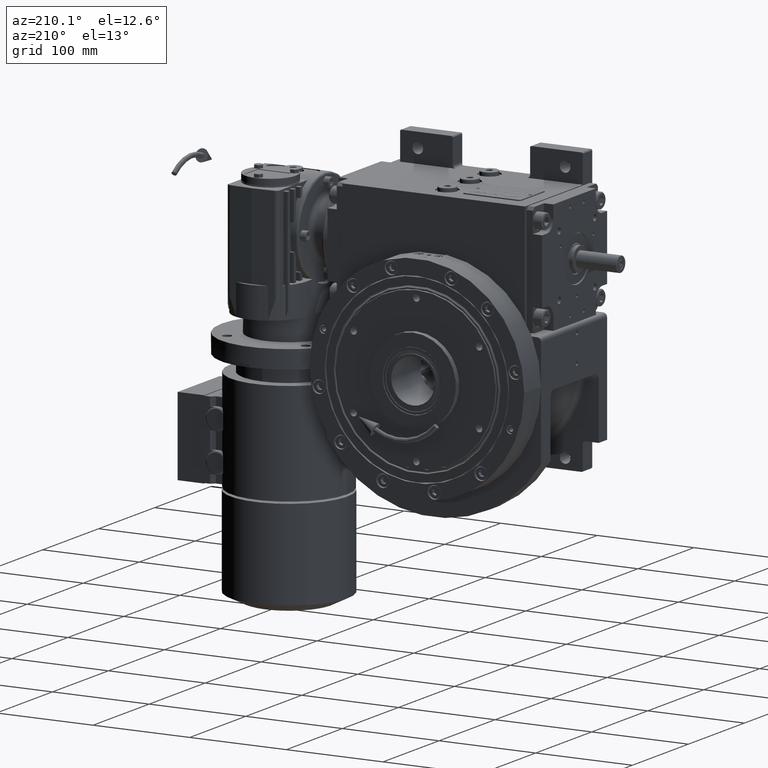
[diagram: clean part render]
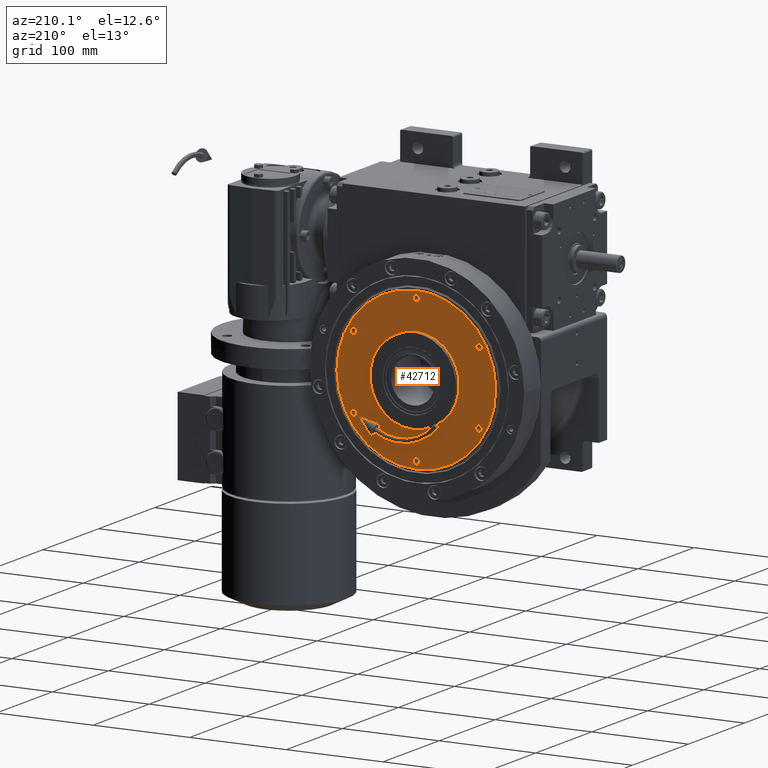
[diagram: same view with one face highlighted and labeled with its STEP entity id]
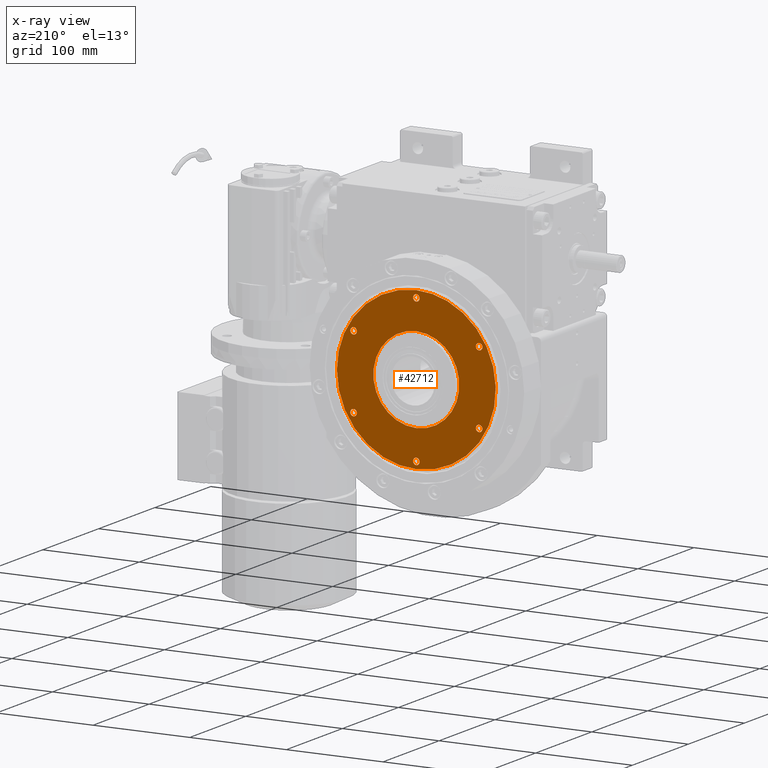
[diagram: x-ray of the same camera — body ghosted, the highlighted face saturated]
A machine part, auxiliary view. The second image highlights one B-rep face of the part: STEP entity #42712.
The next image is the same camera in x-ray: the body ghosted, the highlighted face saturated — about 0% of this face is hidden behind the body in this view.
In plain terms, the highlighted planar face has unit normal (0, -1, -0).
Its self-contained STEP definition (entity closure, byte-faithful):
#217 = EDGE_LOOP ( 'NONE', ( #3648, #22772 ) ) ;
#1012 = CARTESIAN_POINT ( 'NONE',  ( 73.74813151264139321, 110.5000000000000000, -36.37479690083411299 ) ) ;
#1522 = CARTESIAN_POINT ( 'NONE',  ( 69.83423930135026581, 110.4999999999999858, -43.41667302301342346 ) ) ;
#1560 = ORIENTED_EDGE ( 'NONE', *, *, #62625, .F. ) ;
#2117 = DIRECTION ( 'NONE',  ( 0.000000000000000000, 1.000000000000000000, 1.540743955586159449E-33 ) ) ;
#2300 = VERTEX_POINT ( 'NONE', #42890 ) ;
#2467 = ORIENTED_EDGE ( 'NONE', *, *, #32958, .F. ) ;
#2635 = CARTESIAN_POINT ( 'NONE',  ( -40.90000000000027569, 110.5000000000000000, 64.95190528383290030 ) ) ;
#3648 = ORIENTED_EDGE ( 'NONE', *, *, #23586, .F. ) ;
#3738 = EDGE_CURVE ( 'NONE', #2300, #33076, #42170, .T. ) ;
#3795 = AXIS2_PLACEMENT_3D ( 'NONE', #78280, #55927, #23265 ) ;
#3812 = CARTESIAN_POINT ( 'NONE',  ( -79.42723460417914794, 110.5000000000000142, 21.28768615169941825 ) ) ;
#3947 = CARTESIAN_POINT ( 'NONE',  ( -40.89999999999999858, 110.5000000000000000, -64.95190528383290030 ) ) ;
#4323 = CARTESIAN_POINT ( 'NONE',  ( 80.11850087870728032, 110.4999999999999574, 18.33894396968164386 ) ) ;
#4347 = B_SPLINE_CURVE_WITH_KNOTS ( 'NONE', 3,
 ( #90462, #43717, #81628, #66581, #50473, #68114, #92005, #19342, #50994, #3812, #98291, #74354, #42173, #49971, #66065, #34903, #20371, #11071, #82664, #99316, #11579, #4836, #12101, #99822, #34385, #51509, #35423, #26611, #58785, #43211, #10558, #75383, #18828, #73835, #75896, #28667, #67084, #58273, #27134, #98805, #19852, #4323, #59306, #52012, #74877, #91511, #90990, #83185 ),
 .UNSPECIFIED., .F., .F.,
 ( 4, 1, 1, 1, 2, 2, 2, 2, 2, 2, 2, 2, 2, 2, 2, 2, 2, 2, 2, 2, 2, 1, 1, 1, 2, 2, 4 ),
 ( 0.000000000000000000, 0.03124999999999995837, 0.04687499999999995143, 0.05468749999999994449, 0.05859374999999993755, 0.06249999999999991673, 0.09374999999999993061, 0.1249999999999999445, 0.1874999999999999722, 0.2500000000000000000, 0.3125000000000000000, 0.3750000000000000555, 0.4375000000000000555, 0.5000000000000001110, 0.5625000000000001110, 0.6250000000000001110, 0.6875000000000002220, 0.7500000000000002220, 0.8125000000000001110, 0.8437500000000001110, 0.8750000000000000000, 0.9062500000000000000, 0.9218750000000000000, 0.9296875000000000000, 0.9335937500000000000, 0.9375000000000000000, 1.000000000000000000 ),
 .UNSPECIFIED. ) ;
#4554 = ORIENTED_EDGE ( 'NONE', *, *, #15398, .T. ) ;
#4836 = CARTESIAN_POINT ( 'NONE',  ( -21.32594694526337165, 110.5000000000000000, 79.55394827524149548 ) ) ;
#5035 = AXIS2_PLACEMENT_3D ( 'NONE', #62536, #30353, #62034 ) ;
#5432 = DIRECTION ( 'NONE',  ( 1.000000000000000000, 0.000000000000000000, 0.000000000000000000 ) ) ;
#6714 = CARTESIAN_POINT ( 'NONE',  ( -1.048367022895735268E-10, 110.5000000000000142, -82.18603692326404087 ) ) ;
#7284 = VERTEX_POINT ( 'NONE', #59743 ) ;
#8233 = CARTESIAN_POINT ( 'NONE',  ( -80.67302273752034125, 110.5000000000000284, -15.69862675829507204 ) ) ;
#8808 = EDGE_LOOP ( 'NONE', ( #2467, #54279 ) ) ;
#9291 = VERTEX_POINT ( 'NONE', #27861 ) ;
#9298 = CARTESIAN_POINT ( 'NONE',  ( 74.89780891093313642, 110.5000000000000284, -33.94318345663835856 ) ) ;
#9643 = ORIENTED_EDGE ( 'NONE', *, *, #26002, .T. ) ;
#9868 = EDGE_LOOP ( 'NONE', ( #32196, #34563 ) ) ;
#10558 = CARTESIAN_POINT ( 'NONE',  ( 50.14712887847355915, 110.4999999999999716, 65.33694734459872677 ) ) ;
#11064 = EDGE_CURVE ( 'NONE', #70471, #87347, #65552, .T. ) ;
#11071 = CARTESIAN_POINT ( 'NONE',  ( -50.14684274527402152, 110.5000000000000142, 65.33704237330343290 ) ) ;
#11133 = CARTESIAN_POINT ( 'NONE',  ( 34.10000000000000142, 110.5000000000000000, -64.95190528383290030 ) ) ;
#11143 = EDGE_LOOP ( 'NONE', ( #67783, #9643, #22287 ) ) ;
#11283 = FACE_BOUND ( 'NONE', #14084, .T. ) ;
#11340 = CARTESIAN_POINT ( 'NONE',  ( -78.39999999999999147, 110.5000000000000000, 2.697109197274935919E-15 ) ) ;
#11579 = CARTESIAN_POINT ( 'NONE',  ( -26.46591210633614466, 110.5000000000000426, 77.99484015378844504 ) ) ;
#12101 = CARTESIAN_POINT ( 'NONE',  ( -10.74154236511540184, 110.5000000000000000, 81.65956691445188653 ) ) ;
#12320 = DIRECTION ( 'NONE',  ( 0.000000000000000000, 1.000000000000000000, -2.089831575765000222E-15 ) ) ;
#12438 = VERTEX_POINT ( 'NONE', #25558 ) ;
#12898 = VERTEX_POINT ( 'NONE', #2635 ) ;
#14004 = CARTESIAN_POINT ( 'NONE',  ( 78.32115647600109298, 110.4999999999999716, -25.16263082416817198 ) ) ;
#14084 = EDGE_LOOP ( 'NONE', ( #99398, #46959 ) ) ;
#14291 = CARTESIAN_POINT ( 'NONE',  ( 1.776356839400252042E-14, 110.5000000000000000, -3.552713678800499352E-15 ) ) ;
#14401 = DIRECTION ( 'NONE',  ( 0.000000000000000000, 1.000000000000000000, 1.540743955586159449E-33 ) ) ;
#15398 = EDGE_CURVE ( 'NONE', #32811, #40595, #47558, .T. ) ;
#15477 = CARTESIAN_POINT ( 'NONE',  ( -79.42706700825716837, 110.5000000000000000, -21.28825086087052298 ) ) ;
#15667 = AXIS2_PLACEMENT_3D ( 'NONE', #14291, #37133, #68784 ) ;
#16380 = AXIS2_PLACEMENT_3D ( 'NONE', #42924, #12320, #43932 ) ;
#16506 = CARTESIAN_POINT ( 'NONE',  ( -61.93037135062296272, 110.5000000000000142, -54.29808050887305626 ) ) ;
#16828 = CIRCLE ( 'NONE', #59970, 3.400000000000000355 ) ;
#16918 = AXIS2_PLACEMENT_3D ( 'NONE', #63683, #57806, #58334 ) ;
#17063 = CARTESIAN_POINT ( 'NONE',  ( 26.46527515611211356, 110.5000000000000284, -77.99510436064866781 ) ) ;
#18291 = CARTESIAN_POINT ( 'NONE',  ( -34.10000000000027853, 110.5000000000000000, 64.95190528383345452 ) ) ;
#18828 = CARTESIAN_POINT ( 'NONE',  ( 61.93011393209871329, 110.4999999999999858, 54.29833759267260263 ) ) ;
#18888 = ORIENTED_EDGE ( 'NONE', *, *, #100378, .F. ) ;
#19039 = FACE_BOUND ( 'NONE', #21059, .T. ) ;
#19342 = CARTESIAN_POINT ( 'NONE',  ( -80.67297687466572143, 110.5000000000000284, 15.69867770626846770 ) ) ;
#19438 = CARTESIAN_POINT ( 'NONE',  ( 37.49999999999972289, 110.5000000000000000, 64.95190528383290030 ) ) ;
#19642 = CARTESIAN_POINT ( 'NONE',  ( -37.50000000000000000, 110.5000000000000000, -64.95190528383234607 ) ) ;
#19852 = CARTESIAN_POINT ( 'NONE',  ( 79.57457908632085264, 110.4999999999999858, 20.63093614355465988 ) ) ;
#20371 = CARTESIAN_POINT ( 'NONE',  ( -54.29909472632881773, 110.5000000000000000, 61.92944677904171868 ) ) ;
#21059 = EDGE_LOOP ( 'NONE', ( #22441, #4554 ) ) ;
#22287 = ORIENTED_EDGE ( 'NONE', *, *, #23649, .T. ) ;
#22441 = ORIENTED_EDGE ( 'NONE', *, *, #69144, .F. ) ;
#22756 = CARTESIAN_POINT ( 'NONE',  ( -80.73621674438206242, 110.5000000000000000, -15.37038518178290758 ) ) ;
#22772 = ORIENTED_EDGE ( 'NONE', *, *, #3738, .F. ) ;
#23111 = CIRCLE ( 'NONE', #47989, 3.400000000000000355 ) ;
#23265 = DIRECTION ( 'NONE',  ( -1.000000000000000000, 0.000000000000000000, 0.000000000000000000 ) ) ;
#23586 = EDGE_CURVE ( 'NONE', #33076, #2300, #90001, .T. ) ;
#23649 = EDGE_CURVE ( 'NONE', #79382, #78569, #64438, .T. ) ;
#23770 = CARTESIAN_POINT ( 'NONE',  ( -71.33364469616624604, 110.5000000000000142, -41.17277949763079903 ) ) ;
#24284 = CARTESIAN_POINT ( 'NONE',  ( -80.85914935550086113, 110.5000000000000142, -14.71020086056657838 ) ) ;
#25350 = CARTESIAN_POINT ( 'NONE',  ( 65.33763228115991240, 110.4999999999999858, -50.14630245138530995 ) ) ;
#25558 = CARTESIAN_POINT ( 'NONE',  ( 71.59999999999999432, 110.5000000000000000, -3.645078006012920499E-16 ) ) ;
#26002 = EDGE_CURVE ( 'NONE', #54100, #79382, #29404, .T. ) ;
#26235 = EDGE_LOOP ( 'NONE', ( #1560, #73242 ) ) ;
#26611 = CARTESIAN_POINT ( 'NONE',  ( 26.46597584794664115, 110.5000000000000000, 77.99473097346013617 ) ) ;
#27134 = CARTESIAN_POINT ( 'NONE',  ( 76.96221393906922970, 110.4999999999999716, 28.95965176232081362 ) ) ;
#27766 = CIRCLE ( 'NONE', #57604, 3.400000000000000355 ) ;
#27861 = CARTESIAN_POINT ( 'NONE',  ( -34.10000000000000142, 110.5000000000000000, -64.95190528383234607 ) ) ;
#28009 = DIRECTION ( 'NONE',  ( -1.000000000000000000, 0.000000000000000000, -1.502066445081090976E-15 ) ) ;
#28667 = CARTESIAN_POINT ( 'NONE',  ( 71.21633143618713291, 110.5000000000000000, 41.11144999242241482 ) ) ;
#28869 = PLANE ( 'NONE',  #82416 ) ;
#29404 = B_SPLINE_CURVE_WITH_KNOTS ( 'NONE', 3,
 ( #77820, #93423, #100723, #78825, #78325, #47140, #94964, #53426, #14004, #88158, #9298, #1012, #39903, #1522, #25350, #72589, #64298, #49217, #89718, #32107, #17063, #81398, #33644, #40931, #55968 ),
 .UNSPECIFIED., .F., .F.,
 ( 4, 2, 2, 1, 1, 1, 2, 2, 2, 2, 2, 2, 2, 4 ),
 ( 0.000000000000000000, 0.06249999648971088506, 0.06640624627031782579, 0.07031249605092476651, 0.07812499561213863408, 0.09374999473456628596, 0.1249999929794215758, 0.1562499912242768518, 0.1874999894691321833, 0.2499999859588427631, 0.3124999824485532596, 0.3749999789382638671, 0.4374999754279744746, 0.4999999719176850821 ),
 .UNSPECIFIED. ) ;
#30353 = DIRECTION ( 'NONE',  ( 0.000000000000000000, 1.000000000000000000, 1.540743955586159449E-33 ) ) ;
#30528 = CARTESIAN_POINT ( 'NONE',  ( -81.03742544091511490, 110.5000000000000284, -13.71909706410294660 ) ) ;
#30917 = EDGE_CURVE ( 'NONE', #87347, #70471, #78630, .T. ) ;
#31040 = CARTESIAN_POINT ( 'NONE',  ( -10.74076764840350862, 110.4999999999999858, -81.65964476131456706 ) ) ;
#31555 = CARTESIAN_POINT ( 'NONE',  ( -41.17304319471159602, 110.5000000000000426, -71.33342587732616380 ) ) ;
#32107 = CARTESIAN_POINT ( 'NONE',  ( 36.43741795798403871, 110.5000000000000142, -73.86467248177763167 ) ) ;
#32196 = ORIENTED_EDGE ( 'NONE', *, *, #30917, .F. ) ;
#32811 = VERTEX_POINT ( 'NONE', #92821 ) ;
#32958 = EDGE_CURVE ( 'NONE', #58213, #9291, #60003, .T. ) ;
#33076 = VERTEX_POINT ( 'NONE', #11133 ) ;
#33556 = DIRECTION ( 'NONE',  ( 0.000000000000000000, 1.000000000000000000, 1.540743955586159449E-33 ) ) ;
#33644 = CARTESIAN_POINT ( 'NONE',  ( 10.74078281828397508, 110.4999999999999716, -81.65971843768956262 ) ) ;
#34385 = CARTESIAN_POINT ( 'NONE',  ( 5.396190313849494657, 110.5000000000000000, 82.18606838660620895 ) ) ;
#34479 = DIRECTION ( 'NONE',  ( 4.179663151529973622E-15, 1.000000000000000000, 2.089831575764989967E-15 ) ) ;
#34563 = ORIENTED_EDGE ( 'NONE', *, *, #11064, .F. ) ;
#34681 = DIRECTION ( 'NONE',  ( 1.000000000000000000, 0.000000000000000000, 0.000000000000000000 ) ) ;
#34903 = CARTESIAN_POINT ( 'NONE',  ( -61.92976105365575279, 110.5000000000000142, 54.29857669836266609 ) ) ;
#35423 = CARTESIAN_POINT ( 'NONE',  ( 21.32597268393185175, 110.4999999999999858, 79.55402177641883554 ) ) ;
#36161 = FACE_OUTER_BOUND ( 'NONE', #11143, .T. ) ;
#37133 = DIRECTION ( 'NONE',  ( 6.394085361170760874E-16, 1.000000000000000000, -2.395852276087253871E-17 ) ) ;
#39333 = VERTEX_POINT ( 'NONE', #39548 ) ;
#39548 = CARTESIAN_POINT ( 'NONE',  ( 78.39999999999999147, 110.5000000000000000, -7.967186993941117277E-27 ) ) ;
#39854 = CARTESIAN_POINT ( 'NONE',  ( -81.98533930688320481, 110.5000000000000000, -6.740832071539393233 ) ) ;
#39903 = CARTESIAN_POINT ( 'NONE',  ( 71.21656534630055546, 110.4999999999999858, -41.11101387479465075 ) ) ;
#40548 = DIRECTION ( 'NONE',  ( -1.000000000000000000, 0.000000000000000000, 0.000000000000000000 ) ) ;
#40595 = VERTEX_POINT ( 'NONE', #82615 ) ;
#40837 = CARTESIAN_POINT ( 'NONE',  ( 75.00000000000000000, 110.5000000000000000, -4.884981308350821306E-15 ) ) ;
#40931 = CARTESIAN_POINT ( 'NONE',  ( 5.396965314102869726, 110.4999999999999858, -82.18599046470633596 ) ) ;
#42170 = CIRCLE ( 'NONE', #76990, 3.400000000000000355 ) ;
#42173 = CARTESIAN_POINT ( 'NONE',  ( -73.86467355760834153, 110.5000000000000142, 36.43724814399683254 ) ) ;
#42422 = CIRCLE ( 'NONE', #48992, 3.400000000000000355 ) ;
#42712 = ADVANCED_FACE ( 'NONE', ( #36161, #90162, #67819, #44427, #11283, #68322, #100025, #19039 ), #28869, .F. ) ;
#42890 = CARTESIAN_POINT ( 'NONE',  ( 40.89999999999999858, 110.5000000000000000, -64.95190528383234607 ) ) ;
#42906 = CARTESIAN_POINT ( 'NONE',  ( 2.030702568688729503E-14, 110.5000000000000000, 0.000000000000000000 ) ) ;
#42924 = CARTESIAN_POINT ( 'NONE',  ( -37.50000000000027711, 110.5000000000000000, 64.95190528383345452 ) ) ;
#43211 = CARTESIAN_POINT ( 'NONE',  ( 41.17346744512528289, 110.4999999999999858, 71.33314274904846286 ) ) ;
#43717 = CARTESIAN_POINT ( 'NONE',  ( -82.18410185386885303, 110.4999999999999858, 2.706720040397336824 ) ) ;
#43932 = DIRECTION ( 'NONE',  ( 1.000000000000000000, 0.000000000000000000, 0.000000000000000000 ) ) ;
#43979 = EDGE_CURVE ( 'NONE', #49541, #12898, #71058, .T. ) ;
#44427 = FACE_BOUND ( 'NONE', #53297, .T. ) ;
#46959 = ORIENTED_EDGE ( 'NONE', *, *, #43979, .F. ) ;
#47102 = CARTESIAN_POINT ( 'NONE',  ( -81.41054315470101699, 110.5000000000000142, -11.40073033654709000 ) ) ;
#47140 = CARTESIAN_POINT ( 'NONE',  ( 80.33387830201940005, 110.4999999999999716, -17.35095847086826737 ) ) ;
#47558 = CIRCLE ( 'NONE', #59248, 44.45000000000000284 ) ;
#47623 = CARTESIAN_POINT ( 'NONE',  ( -76.96293238175633178, 110.5000000000000284, -28.95791760141081284 ) ) ;
#47989 = AXIS2_PLACEMENT_3D ( 'NONE', #61627, #14401, #61117 ) ;
#48070 = CIRCLE ( 'NONE', #5035, 3.400000000000000355 ) ;
#48775 = CIRCLE ( 'NONE', #15667, 44.45000000000000284 ) ;
#48992 = AXIS2_PLACEMENT_3D ( 'NONE', #51425, #50917, #83099 ) ;
#49217 = CARTESIAN_POINT ( 'NONE',  ( 50.14771722367689222, 110.4999999999999716, -65.33645767331709919 ) ) ;
#49541 = VERTEX_POINT ( 'NONE', #18291 ) ;
#49883 = AXIS2_PLACEMENT_3D ( 'NONE', #73683, #2117, #28009 ) ;
#49971 = CARTESIAN_POINT ( 'NONE',  ( -71.33312151958747904, 110.5000000000000142, 41.17344376063476830 ) ) ;
#50473 = CARTESIAN_POINT ( 'NONE',  ( -81.03738559922308582, 110.5000000000000284, 13.71894467123656725 ) ) ;
#50570 = CARTESIAN_POINT ( 'NONE',  ( 37.50000000000000000, 110.5000000000000000, -64.95190528383290030 ) ) ;
#50699 = DIRECTION ( 'NONE',  ( -1.000000000000000000, 1.836909530733564901E-16, 0.000000000000000000 ) ) ;
#50917 = DIRECTION ( 'NONE',  ( 4.179663151529963367E-15, 1.000000000000000000, 2.089831575764994700E-15 ) ) ;
#50994 = CARTESIAN_POINT ( 'NONE',  ( -80.08037051196102141, 110.5000000000000142, 18.67829002333699506 ) ) ;
#51296 = DIRECTION ( 'NONE',  ( 0.000000000000000000, 1.000000000000000000, -2.089831575764980500E-15 ) ) ;
#51425 = CARTESIAN_POINT ( 'NONE',  ( -37.50000000000027711, 110.5000000000000000, 64.95190528383345452 ) ) ;
#51509 = CARTESIAN_POINT ( 'NONE',  ( 10.74154536275718641, 110.5000000000000000, 81.65949047945815664 ) ) ;
#52012 = CARTESIAN_POINT ( 'NONE',  ( 80.47346500646517597, 110.4999999999999716, 16.69135747300155614 ) ) ;
#52097 = DIRECTION ( 'NONE',  ( 1.000000000000000000, -4.081702296416015997E-15, 0.000000000000000000 ) ) ;
#52437 = CARTESIAN_POINT ( 'NONE',  ( -82.18603400874100373, 110.5000015448012078, -1.581323299043349694E-07 ) ) ;
#53297 = EDGE_LOOP ( 'NONE', ( #99467, #18888 ) ) ;
#53426 = CARTESIAN_POINT ( 'NONE',  ( 79.57472203535758126, 110.4999999999999858, -20.63044246711258722 ) ) ;
#54100 = VERTEX_POINT ( 'NONE', #61222 ) ;
#54279 = ORIENTED_EDGE ( 'NONE', *, *, #90804, .F. ) ;
#55423 = AXIS2_PLACEMENT_3D ( 'NONE', #63401, #55591, #40548 ) ;
#55591 = DIRECTION ( 'NONE',  ( 0.000000000000000000, 1.000000000000000000, -2.089831575764989967E-15 ) ) ;
#55927 = DIRECTION ( 'NONE',  ( 0.000000000000000000, 1.000000000000000000, -2.089831575764995489E-15 ) ) ;
#55968 = CARTESIAN_POINT ( 'NONE',  ( -1.048367022895735268E-10, 110.5000000000000142, -82.18603692326404087 ) ) ;
#56547 = CIRCLE ( 'NONE', #49883, 3.400000000000000355 ) ;
#57604 = AXIS2_PLACEMENT_3D ( 'NONE', #40837, #33556, #65239 ) ;
#57806 = DIRECTION ( 'NONE',  ( 4.179663151529973622E-15, 1.000000000000000000, 2.089831575764979711E-15 ) ) ;
#58213 = VERTEX_POINT ( 'NONE', #3947 ) ;
#58273 = CARTESIAN_POINT ( 'NONE',  ( 74.89794069821219580, 110.5000000000000142, 33.94279222128608353 ) ) ;
#58334 = DIRECTION ( 'NONE',  ( -1.000000000000000000, 4.081702296416015997E-15, 0.000000000000000000 ) ) ;
#58785 = CARTESIAN_POINT ( 'NONE',  ( 36.43673274471090195, 110.5000000000000142, 73.86503631034787531 ) ) ;
#58899 = CARTESIAN_POINT ( 'NONE',  ( 34.09999999999972431, 110.5000000000000000, 64.95190528383290030 ) ) ;
#59248 = AXIS2_PLACEMENT_3D ( 'NONE', #63878, #64925, #95585 ) ;
#59306 = CARTESIAN_POINT ( 'NONE',  ( 80.33384769217845189, 110.4999999999999858, 17.35112966435321979 ) ) ;
#59409 = DIRECTION ( 'NONE',  ( 9.860761315262647568E-31, 1.000000000000000000, 2.089831575764994700E-15 ) ) ;
#59743 = CARTESIAN_POINT ( 'NONE',  ( -71.59999999999999432, 110.5000000000000000, 3.061616997868260769E-15 ) ) ;
#59970 = AXIS2_PLACEMENT_3D ( 'NONE', #19642, #51296, #34681 ) ;
#60003 = CIRCLE ( 'NONE', #16918, 3.400000000000000355 ) ;
#60530 = DIRECTION ( 'NONE',  ( -1.836909530733564901E-16, -1.000000000000000000, -4.632011979606505031E-33 ) ) ;
#61117 = DIRECTION ( 'NONE',  ( -1.000000000000000000, 0.000000000000000000, -3.069440126904848242E-15 ) ) ;
#61222 = CARTESIAN_POINT ( 'NONE',  ( 82.18603400874251008, 110.5000015448018047, 1.581323405575299952E-07 ) ) ;
#61627 = CARTESIAN_POINT ( 'NONE',  ( -75.00000000000000000, 110.5000000000000000, 1.043609643146843930E-14 ) ) ;
#61700 = CARTESIAN_POINT ( 'NONE',  ( -1.048367022895735268E-10, 110.5000000000000142, -82.18603692326404087 ) ) ;
#61703 = CARTESIAN_POINT ( 'NONE',  ( -21.32673791258707396, 110.5000000000000000, -79.55386997823406148 ) ) ;
#62034 = DIRECTION ( 'NONE',  ( 1.000000000000000000, 0.000000000000000000, -2.351060522735629490E-15 ) ) ;
#62536 = CARTESIAN_POINT ( 'NONE',  ( -75.00000000000000000, 110.5000000000000000, 7.993605777293068088E-15 ) ) ;
#62625 = EDGE_CURVE ( 'NONE', #12438, #39333, #56547, .T. ) ;
#62718 = CARTESIAN_POINT ( 'NONE',  ( -65.33708734634375048, 110.5000000000000142, -50.14696052069778887 ) ) ;
#63401 = CARTESIAN_POINT ( 'NONE',  ( 37.49999999999972289, 110.5000000000000000, 64.95190528383290030 ) ) ;
#63683 = CARTESIAN_POINT ( 'NONE',  ( -37.50000000000000000, 110.5000000000000000, -64.95190528383234607 ) ) ;
#63878 = CARTESIAN_POINT ( 'NONE',  ( 2.842170943040403268E-14, 110.5000000000000000, -7.105427357600998703E-15 ) ) ;
#64298 = CARTESIAN_POINT ( 'NONE',  ( 54.29822300750021924, 110.4999999999999432, -61.93031885547897986 ) ) ;
#64438 = B_SPLINE_CURVE_WITH_KNOTS ( 'NONE', 3,
 ( #6714, #102190, #31040, #61703, #86592, #85578, #31555, #78789, #87611, #16506, #62718, #23770, #95433, #47623, #94417, #15477, #79296, #8233, #22756, #24284, #30528, #47102, #39854, #71524, #93385 ),
 .UNSPECIFIED., .F., .F.,
 ( 4, 2, 2, 2, 2, 2, 2, 2, 2, 2, 1, 1, 1, 4 ),
 ( 0.4999999719176850821, 0.5624999754279744746, 0.6249999789382639781, 0.6874999824485534816, 0.7499999859588428741, 0.8124999894691323776, 0.8749999929794217701, 0.9062499947345665774, 0.9374999964897112736, 0.9414062467091042219, 0.9453124969284972812, 0.9531249973672833997, 0.9687499982448555258, 1.000000000000000000 ),
 .UNSPECIFIED. ) ;
#64800 = EDGE_CURVE ( 'NONE', #78569, #54100, #4347, .T. ) ;
#64925 = DIRECTION ( 'NONE',  ( -3.197042680585385368E-16, -1.000000000000000000, -2.395852276087259110E-17 ) ) ;
#65239 = DIRECTION ( 'NONE',  ( 1.000000000000000000, 0.000000000000000000, 1.436759208338440266E-15 ) ) ;
#65552 = CIRCLE ( 'NONE', #97096, 3.400000000000000355 ) ;
#66065 = CARTESIAN_POINT ( 'NONE',  ( -65.33761603904908100, 110.5000000000000426, 50.14632643991264871 ) ) ;
#66581 = CARTESIAN_POINT ( 'NONE',  ( -81.41049721478043466, 110.4999999999999858, 11.40046640563004487 ) ) ;
#67084 = CARTESIAN_POINT ( 'NONE',  ( 73.74790136345738745, 110.5000000000000000, 36.37523474268279244 ) ) ;
#67783 = ORIENTED_EDGE ( 'NONE', *, *, #64800, .T. ) ;
#67819 = FACE_BOUND ( 'NONE', #8808, .T. ) ;
#68078 = EDGE_CURVE ( 'NONE', #12898, #49541, #42422, .T. ) ;
#68114 = CARTESIAN_POINT ( 'NONE',  ( -80.85911346599473859, 110.4999999999999858, 14.71011054370710980 ) ) ;
#68322 = FACE_BOUND ( 'NONE', #9868, .T. ) ;
#68784 = DIRECTION ( 'NONE',  ( 1.000000000000000000, -6.244223985518314942E-16, 2.023907469293703493E-16 ) ) ;
#69144 = EDGE_CURVE ( 'NONE', #32811, #40595, #48775, .T. ) ;
#70471 = VERTEX_POINT ( 'NONE', #70839 ) ;
#70839 = CARTESIAN_POINT ( 'NONE',  ( 40.89999999999972147, 110.5000000000000000, 64.95190528383345452 ) ) ;
#71058 = CIRCLE ( 'NONE', #16380, 3.400000000000000355 ) ;
#71524 = CARTESIAN_POINT ( 'NONE',  ( -82.18412582237159825, 110.5000000000000426, -2.706922455996795041 ) ) ;
#72589 = CARTESIAN_POINT ( 'NONE',  ( 61.93063791654595462, 110.5000000000000000, -54.29769947772633287 ) ) ;
#73242 = ORIENTED_EDGE ( 'NONE', *, *, #84859, .F. ) ;
#73683 = CARTESIAN_POINT ( 'NONE',  ( 75.00000000000000000, 110.5000000000000000, 5.107025913275571780E-15 ) ) ;
#73835 = CARTESIAN_POINT ( 'NONE',  ( 65.33793898011035139, 110.4999999999999716, 50.14568632257584824 ) ) ;
#74354 = CARTESIAN_POINT ( 'NONE',  ( -76.96276536764067089, 110.5000000000000142, 28.95822631422415583 ) ) ;
#74877 = CARTESIAN_POINT ( 'NONE',  ( 80.54161329299185468, 110.4999999999999716, 16.35928189945978062 ) ) ;
#75383 = CARTESIAN_POINT ( 'NONE',  ( 54.29876972623154785, 110.4999999999999858, 61.92967476324737675 ) ) ;
#75896 = CARTESIAN_POINT ( 'NONE',  ( 69.83408181518969116, 110.4999999999999858, 43.41695845024568001 ) ) ;
#76990 = AXIS2_PLACEMENT_3D ( 'NONE', #50570, #34479, #52097 ) ;
#77737 = EDGE_CURVE ( 'NONE', #82020, #7284, #23111, .T. ) ;
#77820 = CARTESIAN_POINT ( 'NONE',  ( 82.18603400874251008, 110.5000015448018047, 1.581323405575299952E-07 ) ) ;
#78280 = CARTESIAN_POINT ( 'NONE',  ( 37.50000000000000000, 110.5000000000000000, -64.95190528383290030 ) ) ;
#78325 = CARTESIAN_POINT ( 'NONE',  ( 80.47346700800821395, 110.4999999999999858, -16.69126919466643955 ) ) ;
#78569 = VERTEX_POINT ( 'NONE', #52437 ) ;
#78630 = CIRCLE ( 'NONE', #55423, 3.400000000000000355 ) ;
#78789 = CARTESIAN_POINT ( 'NONE',  ( -50.14754556814370545, 110.5000000000000000, -65.33666926840521683 ) ) ;
#78825 = CARTESIAN_POINT ( 'NONE',  ( 80.54158547785669953, 110.4999999999999858, -16.35931090249731312 ) ) ;
#79296 = CARTESIAN_POINT ( 'NONE',  ( -80.08026981023135704, 110.5000000000000142, -18.67866566709026444 ) ) ;
#79382 = VERTEX_POINT ( 'NONE', #61700 ) ;
#81398 = CARTESIAN_POINT ( 'NONE',  ( 21.32671897775462355, 110.5000000000000142, -79.55379426815670740 ) ) ;
#81628 = CARTESIAN_POINT ( 'NONE',  ( -81.98529366466023305, 110.4999999999999716, 6.740478288382624861 ) ) ;
#82020 = VERTEX_POINT ( 'NONE', #11340 ) ;
#82416 = AXIS2_PLACEMENT_3D ( 'NONE', #42906, #60530, #50699 ) ;
#82615 = CARTESIAN_POINT ( 'NONE',  ( -44.45000000000027995, 110.5000000000000000, -7.258073362939554685E-15 ) ) ;
#82664 = CARTESIAN_POINT ( 'NONE',  ( -41.17372798125234112, 110.5000000000000142, 71.33306199257258129 ) ) ;
#83099 = DIRECTION ( 'NONE',  ( -1.000000000000000000, 4.081702296416015997E-15, 0.000000000000000000 ) ) ;
#83185 = CARTESIAN_POINT ( 'NONE',  ( 82.18603400874251008, 110.5000015448018047, 1.581323405575299952E-07 ) ) ;
#84859 = EDGE_CURVE ( 'NONE', #39333, #12438, #27766, .T. ) ;
#85578 = CARTESIAN_POINT ( 'NONE',  ( -36.43753282681043260, 110.4999999999999858, -73.86470531561997177 ) ) ;
#86592 = CARTESIAN_POINT ( 'NONE',  ( -26.46516568415016835, 110.5000000000000284, -77.99506614383170700 ) ) ;
#87347 = VERTEX_POINT ( 'NONE', #58899 ) ;
#87611 = CARTESIAN_POINT ( 'NONE',  ( -54.29850716401767841, 110.5000000000000000, -61.92993699073153380 ) ) ;
#88158 = CARTESIAN_POINT ( 'NONE',  ( 76.96232867576274828, 110.5000000000000142, -28.95928036596271227 ) ) ;
#89718 = CARTESIAN_POINT ( 'NONE',  ( 41.17286106389226319, 110.4999999999999858, -71.33364164011456410 ) ) ;
#90001 = CIRCLE ( 'NONE', #3795, 3.400000000000000355 ) ;
#90162 = FACE_BOUND ( 'NONE', #217, .T. ) ;
#90462 = CARTESIAN_POINT ( 'NONE',  ( -82.18603400874100373, 110.5000015448012078, -1.581323299043349694E-07 ) ) ;
#90804 = EDGE_CURVE ( 'NONE', #9291, #58213, #16828, .T. ) ;
#90990 = CARTESIAN_POINT ( 'NONE',  ( 82.18222187922351907, 110.4999999999999858, 5.413844607824314537 ) ) ;
#91511 = CARTESIAN_POINT ( 'NONE',  ( 81.65593245021590008, 110.4999999999999716, 10.75709170780790025 ) ) ;
#92005 = CARTESIAN_POINT ( 'NONE',  ( -80.73618378714648713, 110.5000000000000142, 15.37033942092474881 ) ) ;
#92821 = CARTESIAN_POINT ( 'NONE',  ( 44.44999999999972573, 110.5000000000000000, 5.443555022212958914E-15 ) ) ;
#93385 = CARTESIAN_POINT ( 'NONE',  ( -82.18603400874100373, 110.5000015448012078, -1.581323299043349694E-07 ) ) ;
#93423 = CARTESIAN_POINT ( 'NONE',  ( 82.18217394222040184, 110.4999999999999716, -5.413439777049708468 ) ) ;
#94417 = CARTESIAN_POINT ( 'NONE',  ( -77.86803878220746356, 110.5000000000000284, -26.42874468702228441 ) ) ;
#94964 = CARTESIAN_POINT ( 'NONE',  ( 80.11857142980544211, 110.5000000000000142, -18.33865731567764001 ) ) ;
#95433 = CARTESIAN_POINT ( 'NONE',  ( -73.86436510405066258, 110.5000000000000000, -36.43783581387070569 ) ) ;
#95585 = DIRECTION ( 'NONE',  ( 1.000000000000000000, -3.122111992759157471E-16, 2.823168139440055505E-16 ) ) ;
#97096 = AXIS2_PLACEMENT_3D ( 'NONE', #19438, #59409, #5432 ) ;
#98291 = CARTESIAN_POINT ( 'NONE',  ( -77.86821339563776689, 110.5000000000000426, 26.42818210147167335 ) ) ;
#98805 = CARTESIAN_POINT ( 'NONE',  ( 78.32095192439939524, 110.4999999999999858, 25.16328900372727162 ) ) ;
#99316 = CARTESIAN_POINT ( 'NONE',  ( -36.43677092628834657, 110.5000000000000000, 73.86494086435298811 ) ) ;
#99398 = ORIENTED_EDGE ( 'NONE', *, *, #68078, .F. ) ;
#99467 = ORIENTED_EDGE ( 'NONE', *, *, #77737, .F. ) ;
#99822 = CARTESIAN_POINT ( 'NONE',  ( -5.396175763947936410, 110.5000000000000000, 82.18599094346397749 ) ) ;
#100025 = FACE_BOUND ( 'NONE', #26235, .T. ) ;
#100378 = EDGE_CURVE ( 'NONE', #7284, #82020, #48070, .T. ) ;
#100723 = CARTESIAN_POINT ( 'NONE',  ( 81.65587465362948194, 110.4999999999999432, -10.75668806138983946 ) ) ;
#102190 = CARTESIAN_POINT ( 'NONE',  ( -5.396965920549728679, 110.4999999999999858, -82.18606886526323763 ) ) ;